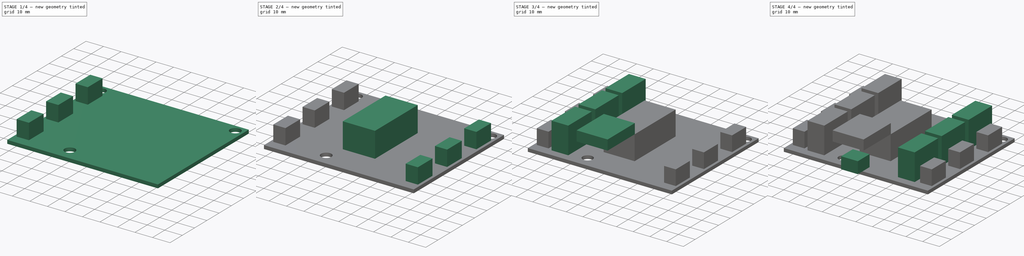
[diagram: build sequence overview — one tinted view per stage of 4, left to right]
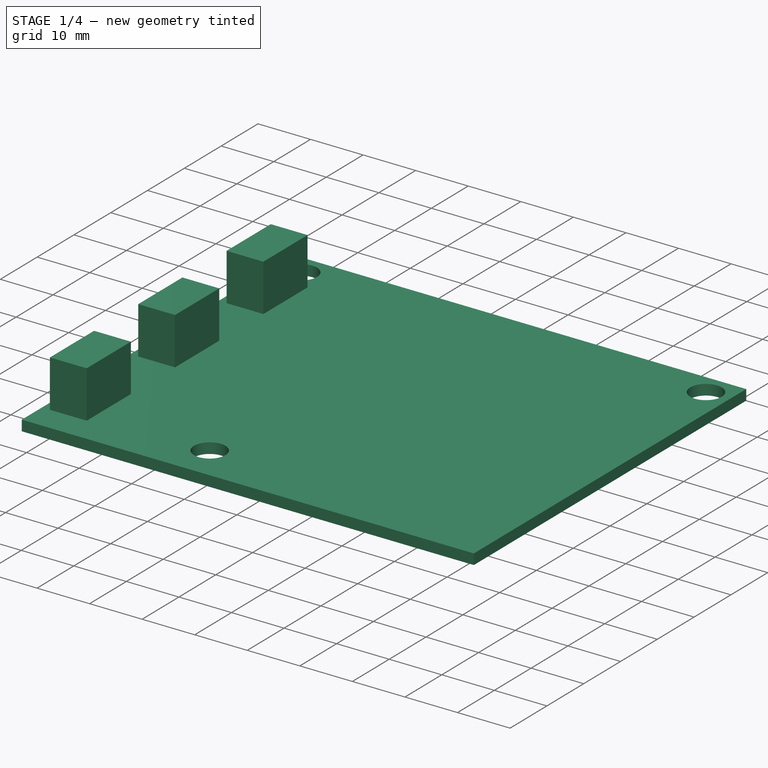
[diagram: stage 1 of 4 — iso view after this stage's code; geometry added in this stage tinted green]
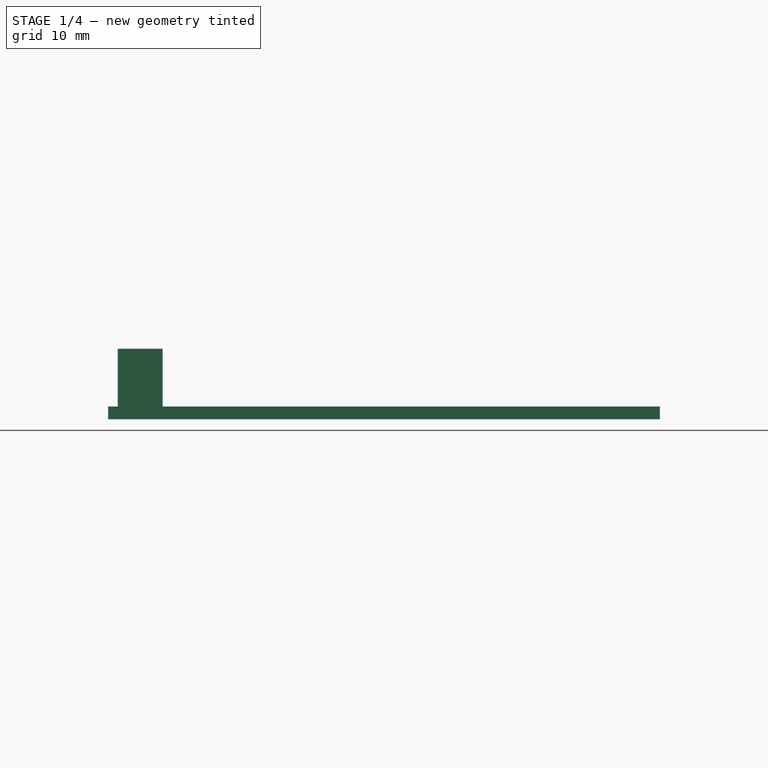
[diagram: stage 1 of 4 — front view after this stage's code; geometry added in this stage tinted green]
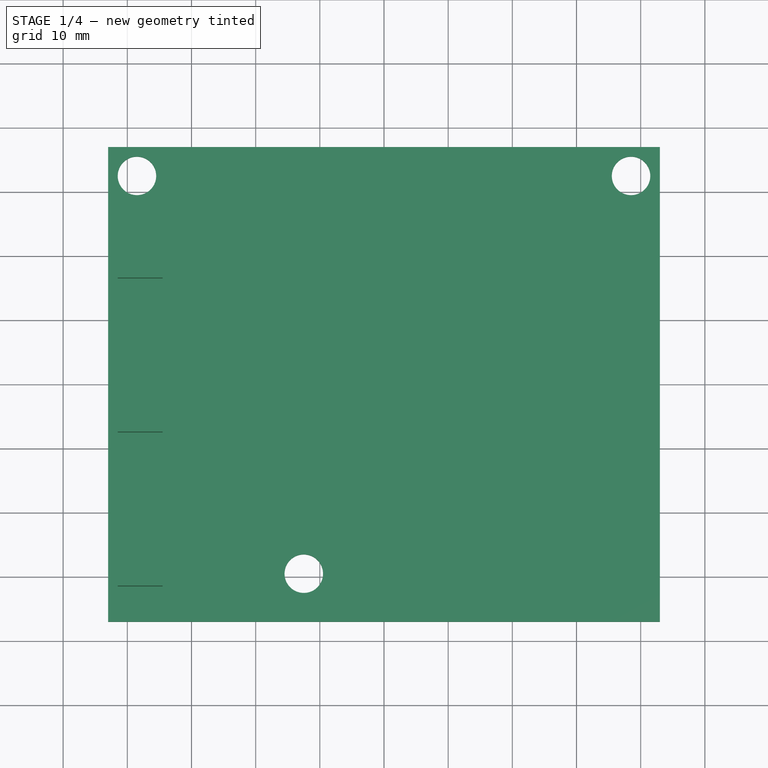
[diagram: stage 1 of 4 — top view after this stage's code; geometry added in this stage tinted green]
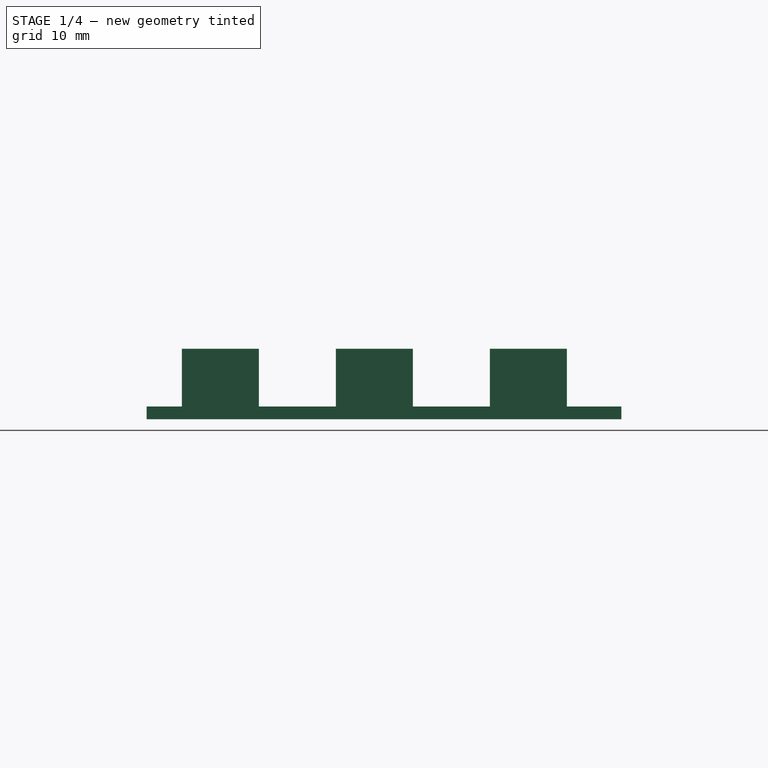
[diagram: stage 1 of 4 — right view after this stage's code; geometry added in this stage tinted green]
FCSTD DOCUMENT  (FreeCAD 0.15R4671 (Git))
Label: pilot_GP
License: All rights reserved
LicenseURL: http://fr.wikipedia.org/wiki/<copyright redacted>
objects: Sketcher::SketchObject×7, PartDesign::Pad×7, PartDesign::Mirrored×2
note: 23 computed .brp shape members not serialized (recipe doc carries the construction recipe); baked Part::Feature solids carry a one-line shape summary decoded from their .brp

FEATURE [Sketcher::SketchObject] Sketch
  sketch-geometry (7):
    g0: LineSegment StartX=-43 StartY=37 StartZ=0 EndX=43 EndY=37 EndZ=0
    g1: LineSegment StartX=43 StartY=37 StartZ=0 EndX=43 EndY=-37 EndZ=0
    g2: LineSegment StartX=43 StartY=-37 StartZ=0 EndX=-43 EndY=-37 EndZ=0
    g3: LineSegment StartX=-43 StartY=-37 StartZ=0 EndX=-43 EndY=37 EndZ=0
    g4: Circle CenterX=-38.5 CenterY=32.5 CenterZ=0 NormalX=0 NormalY=0 NormalZ=1 Radius=3
    g5: Circle CenterX=38.5 CenterY=32.5 CenterZ=0 NormalX=0 NormalY=0 NormalZ=1 Radius=3
    g6: Circle CenterX=-12.5 CenterY=-29.5 CenterZ=0 NormalX=0 NormalY=0 NormalZ=1 Radius=3
  constraints (20):
    c: Coincident(g0,g1)
    c: Coincident(g1,g2)
    c: Coincident(g2,g3)
    c: Coincident(g3,g0)
    c: Horizontal(g0)
    c: Horizontal(g2)
    c: Vertical(g1)
    c: Vertical(g3)
    c: Symmetric(g2,g0,g-1)
    c: Distance(g0) = 86
    c: Distance(g3) = 74
    c: Radius(g4) = 3
    c: Equal(g4,g5)
    c: Equal(g4,g6)
    c: DistanceX(g4,g0) = -4.5
    c: DistanceY(g4,g0) = 4.5
    c: DistanceX(g5,g0) = 4.5
    c: DistanceY(g5,g0) = 4.5
    c: DistanceX(g6,g2) = -30.5
    c: DistanceY(g6,g2) = -7.5
FEATURE [PartDesign::Pad] Pad
  Length = 2
  Length2 = 100
  Sketch = -> Sketch
  Type = 0
FEATURE [Sketcher::SketchObject] Sketch001  label="regulateurs_Sketch001"
  ExternalGeometry = -> [Pad]
  Placement = pos=(0,0,2) rot=(0,0,1;0rad)
  Support = -> Pad [Face9]
  sketch-geometry (12):
    g0: LineSegment StartX=-41.5 StartY=28.5 StartZ=0 EndX=-34.5 EndY=28.5 EndZ=0
    g1: LineSegment StartX=-34.5 StartY=28.5 StartZ=0 EndX=-34.5 EndY=16.5 EndZ=0
    g2: LineSegment StartX=-34.5 StartY=16.5 StartZ=0 EndX=-41.5 EndY=16.5 EndZ=0
    g3: LineSegment StartX=-41.5 StartY=16.5 StartZ=0 EndX=-41.5 EndY=28.5 EndZ=0
    g4: LineSegment StartX=-41.5 StartY=4.5 StartZ=0 EndX=-34.5 EndY=4.5 EndZ=0
    g5: LineSegment StartX=-34.5 StartY=4.5 StartZ=0 EndX=-34.5 EndY=-7.5 EndZ=0
    g6: LineSegment StartX=-34.5 StartY=-7.5 StartZ=0 EndX=-41.5 EndY=-7.5 EndZ=0
    g7: LineSegment StartX=-41.5 StartY=-7.5 StartZ=0 EndX=-41.5 EndY=4.5 EndZ=0
    g8: LineSegment StartX=-41.5 StartY=-19.5 StartZ=0 EndX=-34.5 EndY=-19.5 EndZ=0
    g9: LineSegment StartX=-34.5 StartY=-19.5 StartZ=0 EndX=-34.5 EndY=-31.5 EndZ=0
    g10: LineSegment StartX=-34.5 StartY=-31.5 StartZ=0 EndX=-41.5 EndY=-31.5 EndZ=0
    g11: LineSegment StartX=-41.5 StartY=-31.5 StartZ=0 EndX=-41.5 EndY=-19.5 EndZ=0
  constraints (36):
    c: Coincident(g0,g1)
    c: Coincident(g1,g2)
    c: Coincident(g2,g3)
    c: Coincident(g3,g0)
    c: Horizontal(g0)
    c: Horizontal(g2)
    c: Vertical(g1)
    c: Vertical(g3)
    c: Distance(g0) = 7
    c: Distance(g3) = 12
    c: DistanceX(g0,g-3) = -1.5
    c: DistanceY(g0,g-3) = 8.5
    c: Coincident(g4,g5)
    c: Coincident(g5,g6)
    c: Coincident(g6,g7)
    c: Coincident(g7,g4)
    c: Horizontal(g4)
    c: Horizontal(g6)
    c: Vertical(g5)
    c: Vertical(g7)
    c: Equal(g2,g4)
    c: Equal(g5,g1)
    c: DistanceX(g4,g2) = 0
    c: DistanceY(g2,g4) = -12
    c: Coincident(g8,g9)
    c: Coincident(g9,g10)
    c: Coincident(g10,g11)
    c: Coincident(g11,g8)
    c: Horizontal(g8)
    c: Horizontal(g10)
    c: Vertical(g9)
    c: Vertical(g11)
    c: Equal(g6,g8)
    c: Equal(g11,g7)
    c: DistanceX(g6,g8) = 0
    c: DistanceY(g8,g6) = 12
FEATURE [PartDesign::Pad] Pad001  label="regulateursLeft_Pad001"
  Length = 9
  Length2 = 100
  Sketch = -> Sketch001
  Type = 0
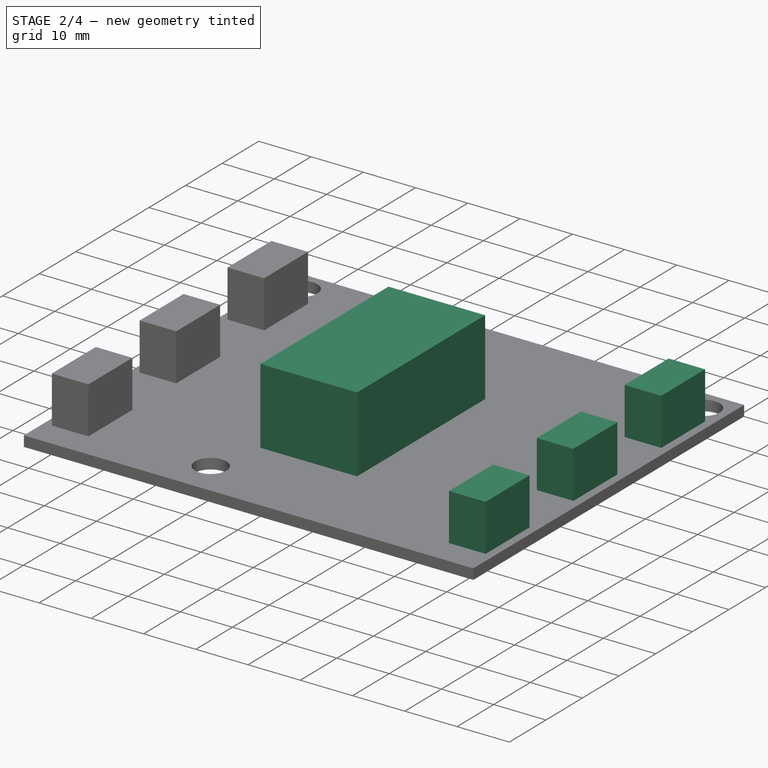
[diagram: stage 2 of 4 — iso view after this stage's code; geometry added in this stage tinted green]
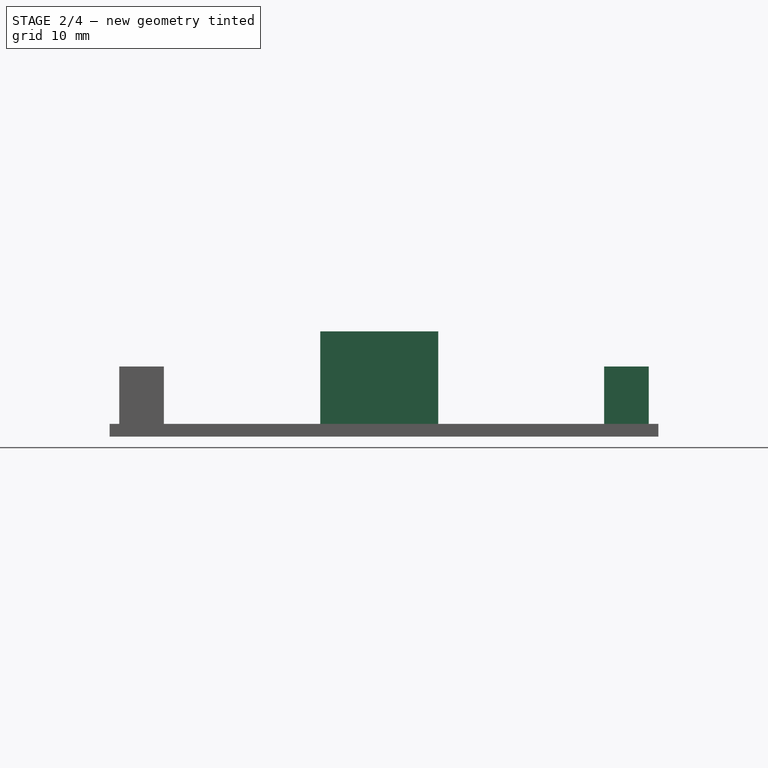
[diagram: stage 2 of 4 — front view after this stage's code; geometry added in this stage tinted green]
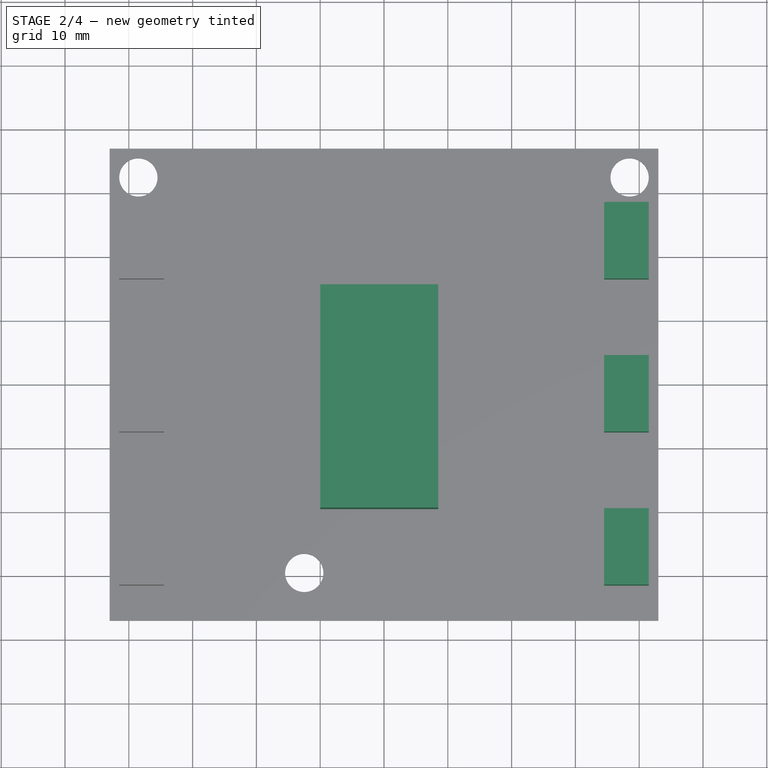
[diagram: stage 2 of 4 — top view after this stage's code; geometry added in this stage tinted green]
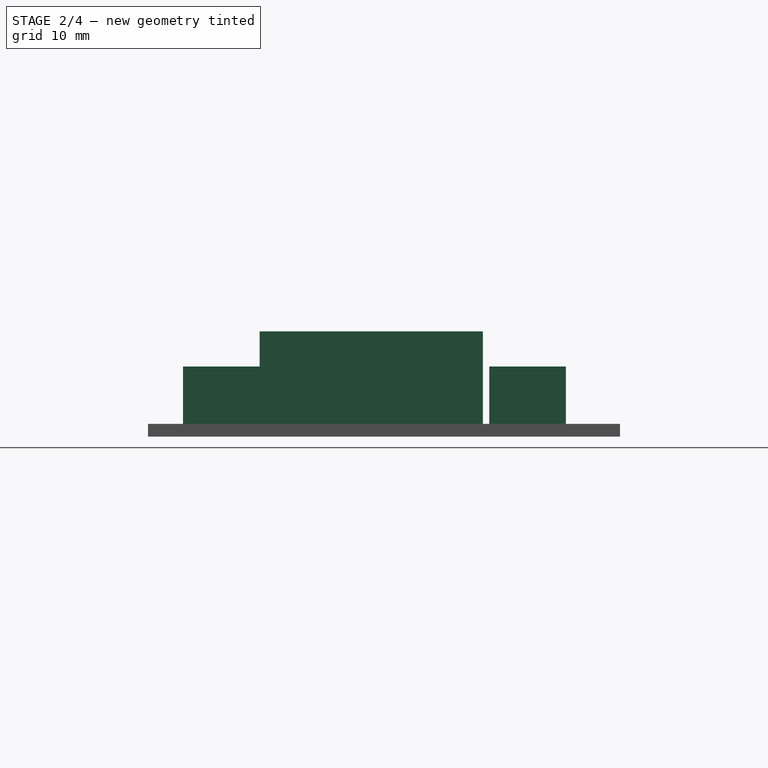
[diagram: stage 2 of 4 — right view after this stage's code; geometry added in this stage tinted green]
FEATURE [PartDesign::Mirrored] Mirrored  label="regulateurs_Mirrored"
  MirrorPlane = -> Sketch001 [V_Axis]
  Originals = -> [Pad001]
FEATURE [Sketcher::SketchObject] Sketch002  label="ArduinoProMini_Sketch002"
  ExternalGeometry = -> [Mirrored]
  Placement = pos=(0,0,2) rot=(0,0,1;0rad)
  Support = -> Mirrored [Face5]
  sketch-geometry (4):
    g0: LineSegment StartX=-10 StartY=15.5 StartZ=0 EndX=8.5 EndY=15.5 EndZ=0
    g1: LineSegment StartX=8.5 StartY=15.5 StartZ=0 EndX=8.5 EndY=-19.5 EndZ=0
    g2: LineSegment StartX=8.5 StartY=-19.5 StartZ=0 EndX=-10 EndY=-19.5 EndZ=0
    g3: LineSegment StartX=-10 StartY=-19.5 StartZ=0 EndX=-10 EndY=15.5 EndZ=0
  constraints (12):
    c: Coincident(g0,g1)
    c: Coincident(g1,g2)
    c: Coincident(g2,g3)
    c: Coincident(g3,g0)
    c: Horizontal(g0)
    c: Horizontal(g2)
    c: Vertical(g1)
    c: Vertical(g3)
    c: DistanceY(g0,g-3) = 21.5
    c: Distance(g3) = 35
    c: Distance(g0) = 18.5
    c: DistanceX(g0,g-3) = -51.5
FEATURE [PartDesign::Pad] Pad002  label="arduino_Pad002"
  Length = 14.5
  Length2 = 100
  Sketch = -> Sketch002
  Type = 0
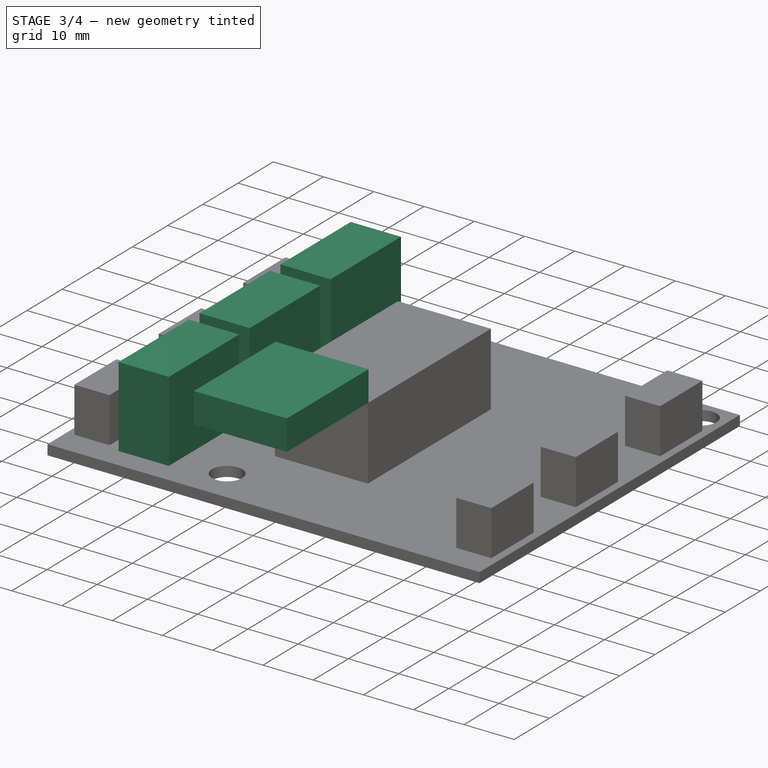
[diagram: stage 3 of 4 — iso view after this stage's code; geometry added in this stage tinted green]
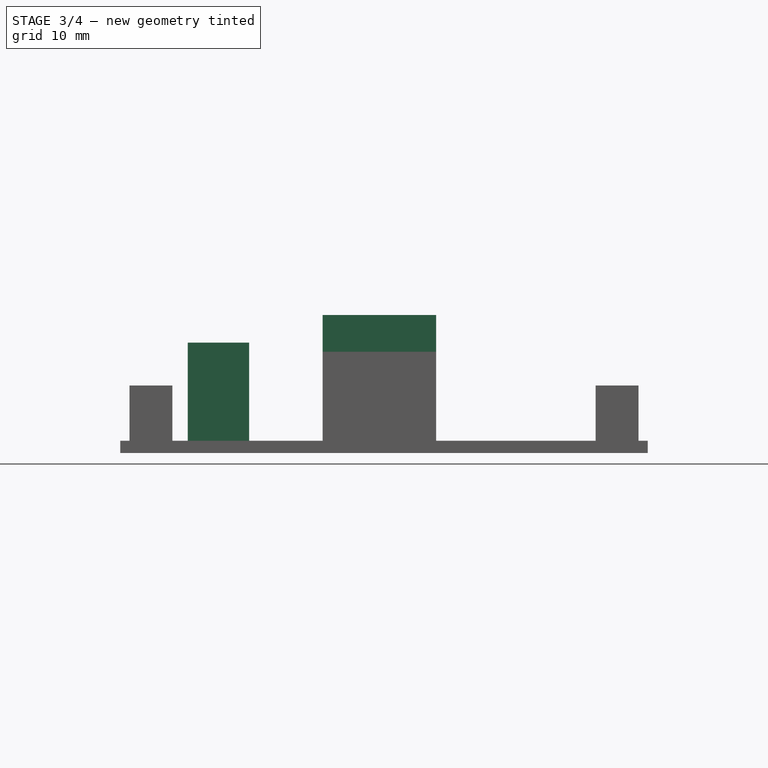
[diagram: stage 3 of 4 — front view after this stage's code; geometry added in this stage tinted green]
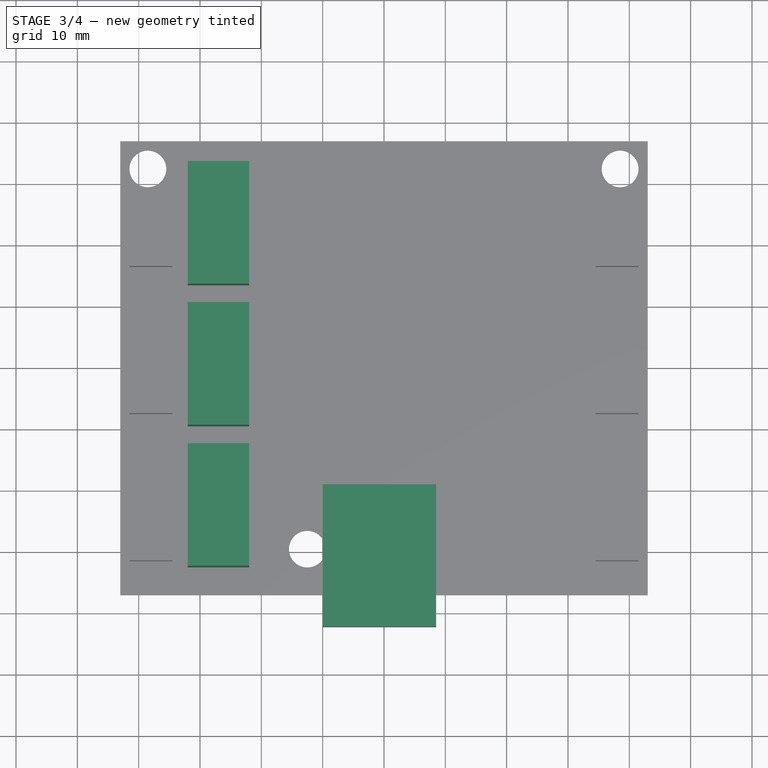
[diagram: stage 3 of 4 — top view after this stage's code; geometry added in this stage tinted green]
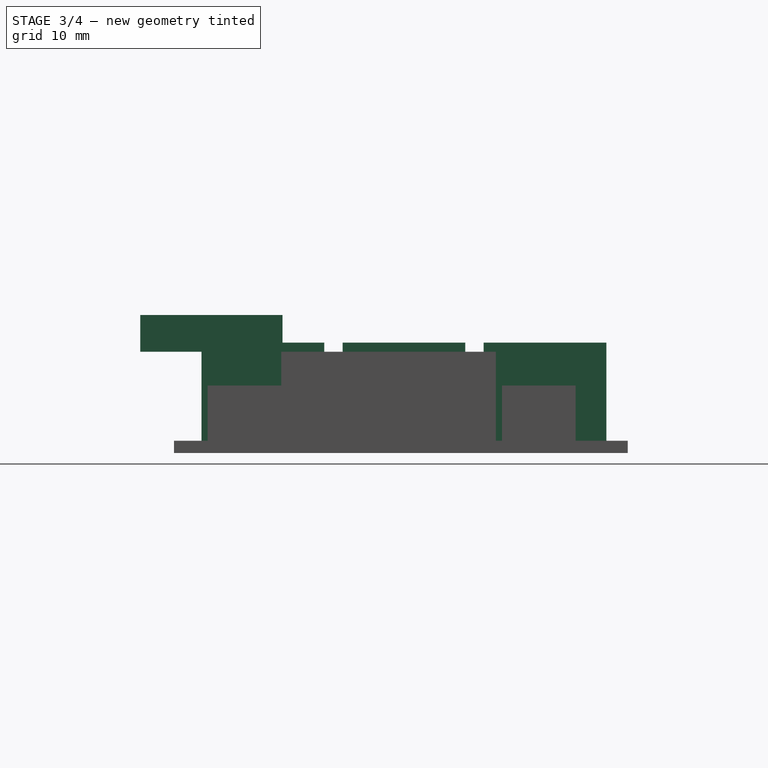
[diagram: stage 3 of 4 — right view after this stage's code; geometry added in this stage tinted green]
FEATURE [Sketcher::SketchObject] Sketch003
  ExternalGeometry = -> [Pad002]
  Placement = pos=(0,0,16.5) rot=(0,0,1;0rad)
  Support = -> Pad002 [Face38]
  sketch-geometry (4):
    g0: LineSegment StartX=-10 StartY=-19.3 StartZ=0 EndX=8.5 EndY=-19.3 EndZ=0
    g1: LineSegment StartX=8.5 StartY=-19.3 StartZ=0 EndX=8.5 EndY=-19.5 EndZ=0
    g2: LineSegment StartX=8.5 StartY=-19.5 StartZ=0 EndX=-10 EndY=-19.5 EndZ=0
    g3: LineSegment StartX=-10 StartY=-19.5 StartZ=0 EndX=-10 EndY=-19.3 EndZ=0
  constraints (11):
    c: Coincident(g0,g1)
    c: Coincident(g1,g2)
    c: Coincident(g2,g3)
    c: Coincident(g3,g0)
    c: Horizontal(g0)
    c: Horizontal(g2)
    c: Vertical(g1)
    c: Vertical(g3)
    c: Coincident(g1,g-3)
    c: Distance(g1) = 0.2
    c: Coincident(g2,g-3)
FEATURE [PartDesign::Pad] Pad003
  Length = 6
  Length2 = 100
  Sketch = -> Sketch003
  Type = 0
FEATURE [Sketcher::SketchObject] Sketch004
  ExternalGeometry = -> [Pad003]
  Placement = pos=(0,-19.5,0) rot=(1,0,0;1.5708rad)
  Support = -> Pad003 [Face45]
  sketch-geometry (4):
    g0: LineSegment StartX=-10 StartY=22.5 StartZ=0 EndX=8.5 EndY=22.5 EndZ=0
    g1: LineSegment StartX=8.5 StartY=22.5 StartZ=0 EndX=8.5 EndY=16.5 EndZ=0
    g2: LineSegment StartX=8.5 StartY=16.5 StartZ=0 EndX=-10 EndY=16.5 EndZ=0
    g3: LineSegment StartX=-10 StartY=16.5 StartZ=0 EndX=-10 EndY=22.5 EndZ=0
  constraints (11):
    c: Coincident(g0,g1)
    c: Coincident(g1,g2)
    c: Coincident(g2,g3)
    c: Coincident(g3,g0)
    c: Horizontal(g0)
    c: Horizontal(g2)
    c: Vertical(g1)
    c: Vertical(g3)
    c: Coincident(g0,g-3)
    c: Distance(g1) = 6
    c: Coincident(g0,g-3)
FEATURE [PartDesign::Pad] Pad004
  Length = 23
  Length2 = 100
  Sketch = -> Sketch004
  Type = 0
FEATURE [Sketcher::SketchObject] Sketch005  label="PrisesGP_Sketch005"
  ExternalGeometry = -> [Pad004]
  Placement = pos=(0,0,2) rot=(0,0,1;0rad)
  Support = -> Pad004 [Face5]
  sketch-geometry (12):
    g0: LineSegment StartX=-32 StartY=33.5 StartZ=0 EndX=-22 EndY=33.5 EndZ=0
    g1: LineSegment StartX=-22 StartY=33.5 StartZ=0 EndX=-22 EndY=13.5 EndZ=0
    g2: LineSegment StartX=-22 StartY=13.5 StartZ=0 EndX=-32 EndY=13.5 EndZ=0
    g3: LineSegment StartX=-32 StartY=13.5 StartZ=0 EndX=-32 EndY=33.5 EndZ=0
    g4: LineSegment StartX=-32 StartY=10.5 StartZ=0 EndX=-22 EndY=10.5 EndZ=0
    g5: LineSegment StartX=-22 StartY=10.5 StartZ=0 EndX=-22 EndY=-9.5 EndZ=0
    g6: LineSegment StartX=-22 StartY=-9.5 StartZ=0 EndX=-32 EndY=-9.5 EndZ=0
    g7: LineSegment StartX=-32 StartY=-9.5 StartZ=0 EndX=-32 EndY=10.5 EndZ=0
    g8: LineSegment StartX=-32 StartY=-12.5 StartZ=0 EndX=-22 EndY=-12.5 EndZ=0
    g9: LineSegment StartX=-22 StartY=-12.5 StartZ=0 EndX=-22 EndY=-32.5 EndZ=0
    g10: LineSegment StartX=-22 StartY=-32.5 StartZ=0 EndX=-32 EndY=-32.5 EndZ=0
    g11: LineSegment StartX=-32 StartY=-32.5 StartZ=0 EndX=-32 EndY=-12.5 EndZ=0
  constraints (37):
    c: Coincident(g0,g1)
    c: Coincident(g1,g2)
    c: Coincident(g2,g3)
    c: Coincident(g3,g0)
    c: Horizontal(g0)
    c: Horizontal(g2)
    c: Vertical(g1)
    c: Vertical(g3)
    c: Distance(g0) = 10
    c: Distance(g3) = 20
    c: DistanceY(g-3,g0) = -3.5
    c: DistanceX(g0,g-3) = -11
    c: Coincident(g4,g5)
    c: Coincident(g5,g6)
    c: Coincident(g6,g7)
    c: Coincident(g7,g4)
    c: Horizontal(g4)
    c: Horizontal(g6)
    c: Vertical(g5)
    c: Vertical(g7)
    c: Coincident(g8,g9)
    c: Coincident(g9,g10)
    c: Coincident(g10,g11)
    c: Coincident(g11,g8)
    c: Horizontal(g8)
    c: Horizontal(g10)
    c: Vertical(g9)
    c: Vertical(g11)
    c: Equal(g2,g4)
    c: Equal(g4,g8)
    c: Equal(g8,g10)
    c: Equal(g7,g3)
    c: Equal(g3,g11)
    c: DistanceX(g0,g4) = 0
    c: DistanceX(g6,g8) = 0
    c: DistanceY(g1,g4) = -3
    c: DistanceY(g5,g8) = -3
FEATURE [PartDesign::Pad] Pad005  label="GPPrises_Gauche_Pad005"
  Length = 16
  Length2 = 100
  Sketch = -> Sketch005
  Type = 0
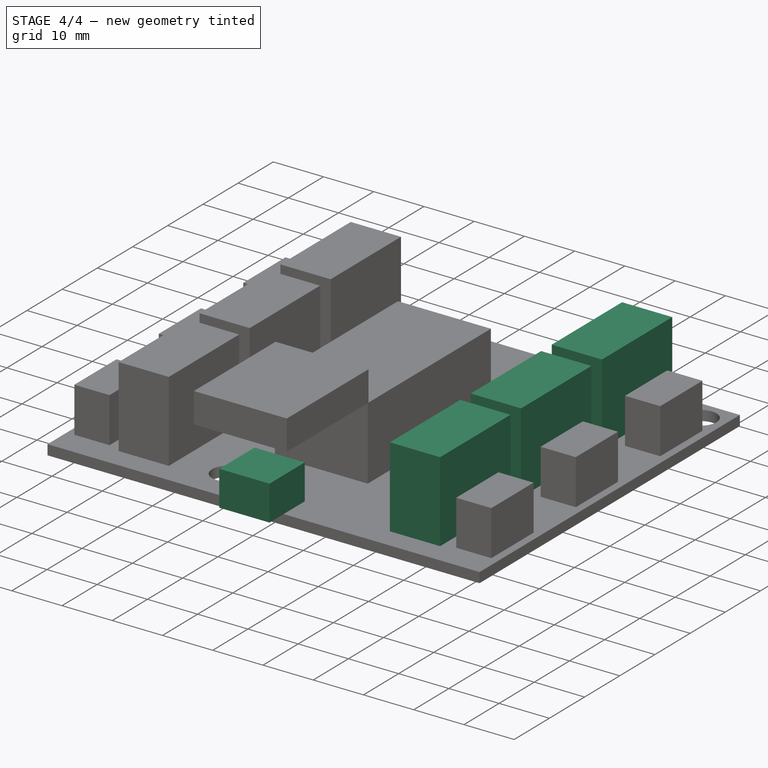
[diagram: stage 4 of 4 — iso view after this stage's code; geometry added in this stage tinted green]
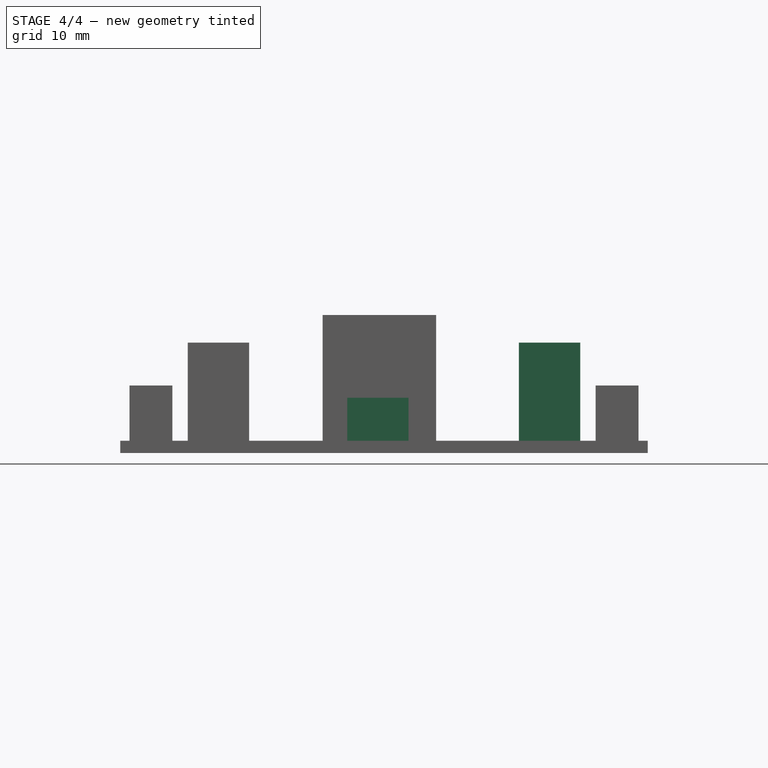
[diagram: stage 4 of 4 — front view after this stage's code; geometry added in this stage tinted green]
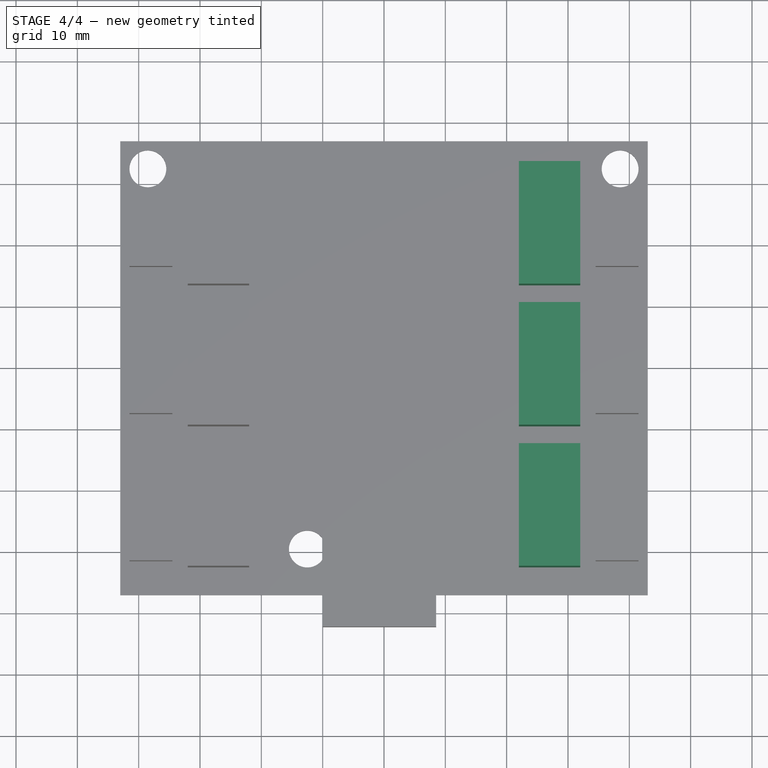
[diagram: stage 4 of 4 — top view after this stage's code; geometry added in this stage tinted green]
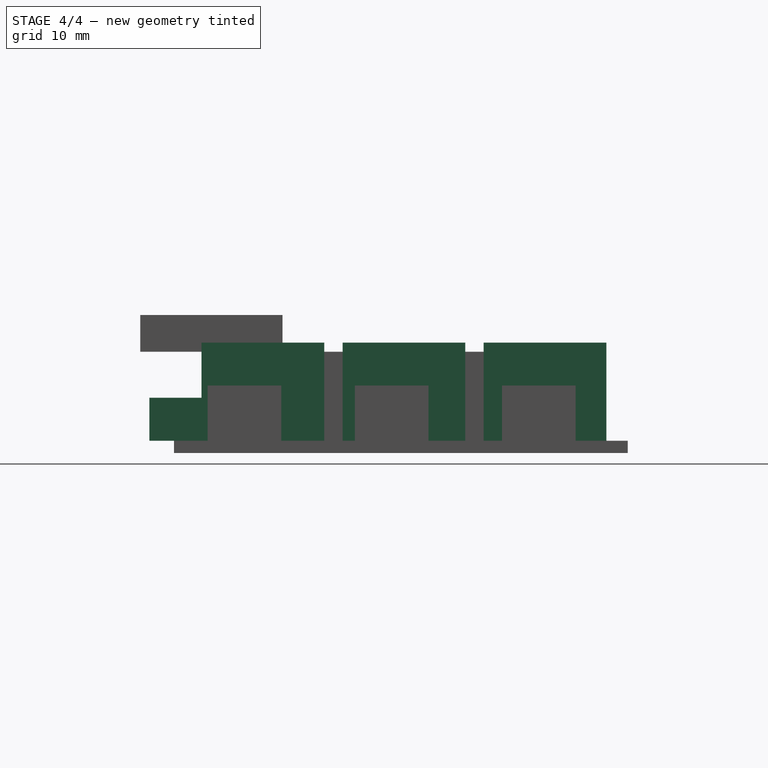
[diagram: stage 4 of 4 — right view after this stage's code; geometry added in this stage tinted green]
FEATURE [PartDesign::Mirrored] Mirrored001  label="GP_Prises_Mirrored001"
  MirrorPlane = -> Sketch005 [V_Axis]
  Originals = -> [Pad005]
FEATURE [Sketcher::SketchObject] Sketch006
  ExternalGeometry = -> [Mirrored001]
  Placement = pos=(0,0,2) rot=(0,0,1;0rad)
  Support = -> Mirrored001 [Face5]
  sketch-geometry (4):
    g0: LineSegment StartX=-6 StartY=-41 StartZ=0 EndX=4 EndY=-41 EndZ=0
    g1: LineSegment StartX=4 StartY=-41 StartZ=0 EndX=4 EndY=-31 EndZ=0
    g2: LineSegment StartX=4 StartY=-31 StartZ=0 EndX=-6 EndY=-31 EndZ=0
    g3: LineSegment StartX=-6 StartY=-31 StartZ=0 EndX=-6 EndY=-41 EndZ=0
  constraints (12):
    c: Coincident(g0,g1)
    c: Coincident(g1,g2)
    c: Coincident(g2,g3)
    c: Coincident(g3,g0)
    c: Horizontal(g0)
    c: Horizontal(g2)
    c: Vertical(g1)
    c: Vertical(g3)
    c: Distance(g2) = 10
    c: Distance(g3) = 10
    c: DistanceY(g-3,g1) = 6
    c: DistanceX(g1,g-3) = 39
FEATURE [PartDesign::Pad] Pad006  label="alim_Pad006"
  Length = 7
  Length2 = 100
  Sketch = -> Sketch006
  Type = 0
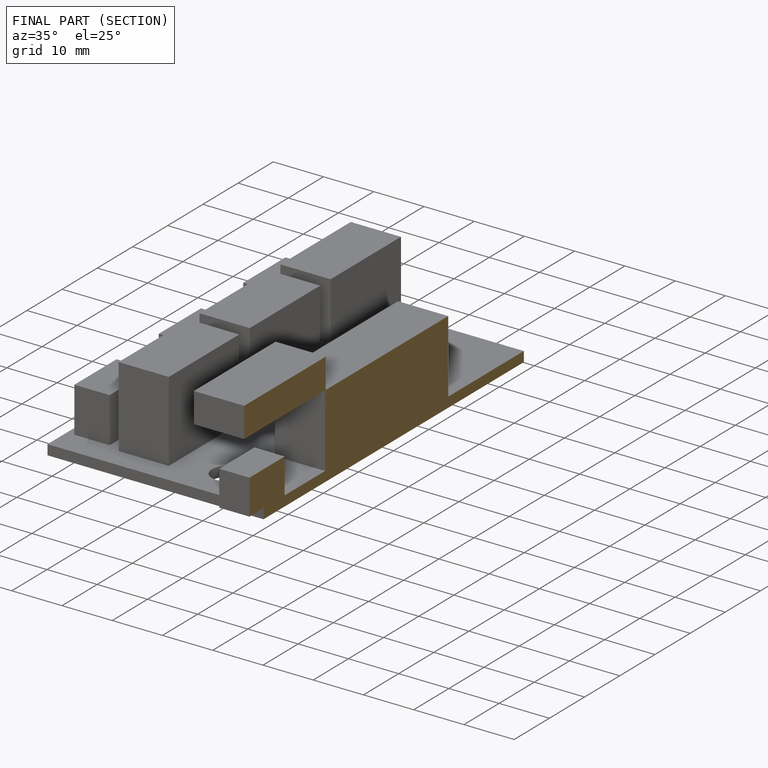
[diagram: finished part — half-section view (interior)]
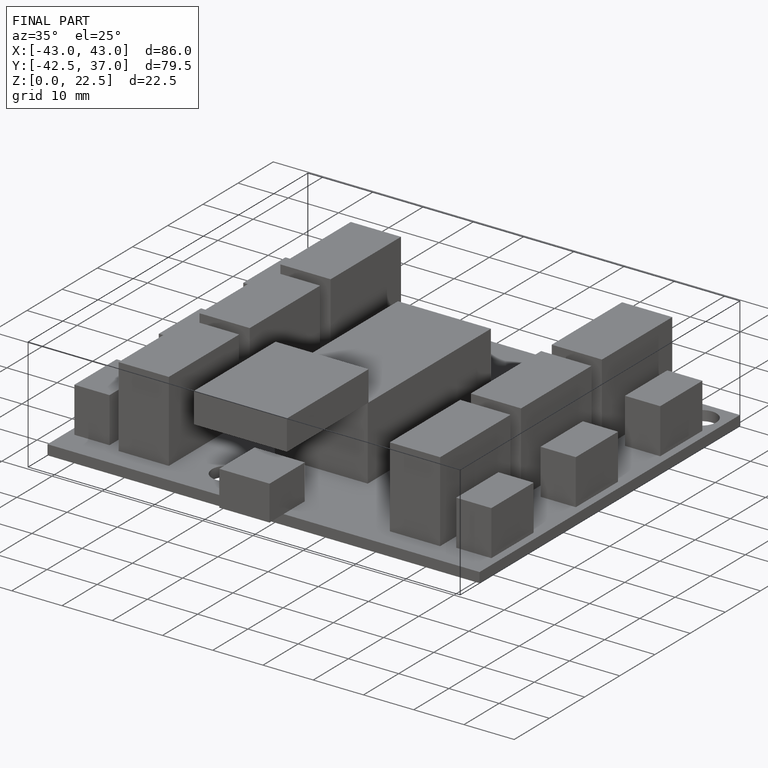
[diagram: finished part — iso view with bounding-box wireframe]
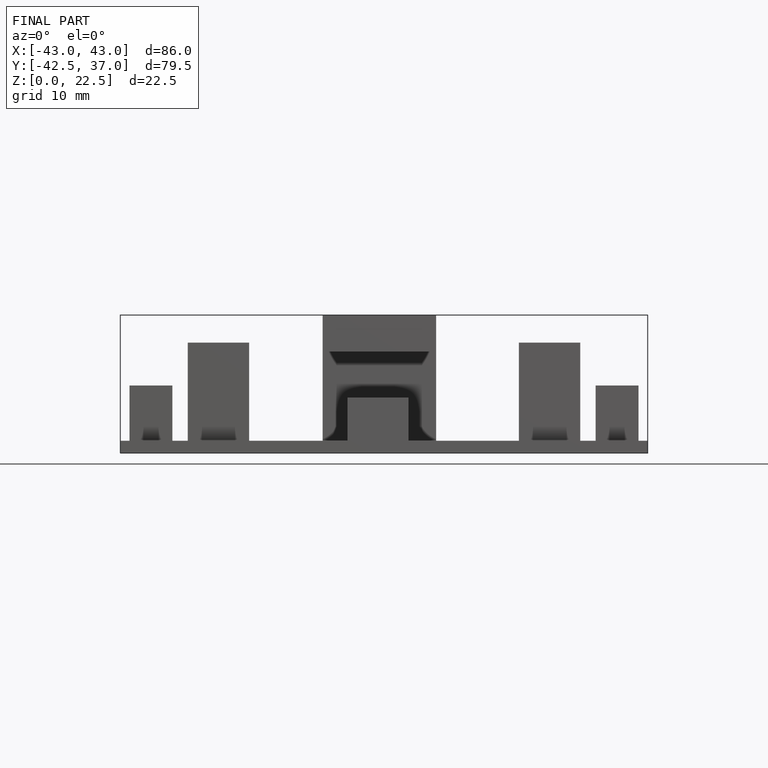
[diagram: finished part — front view with bounding-box wireframe]
